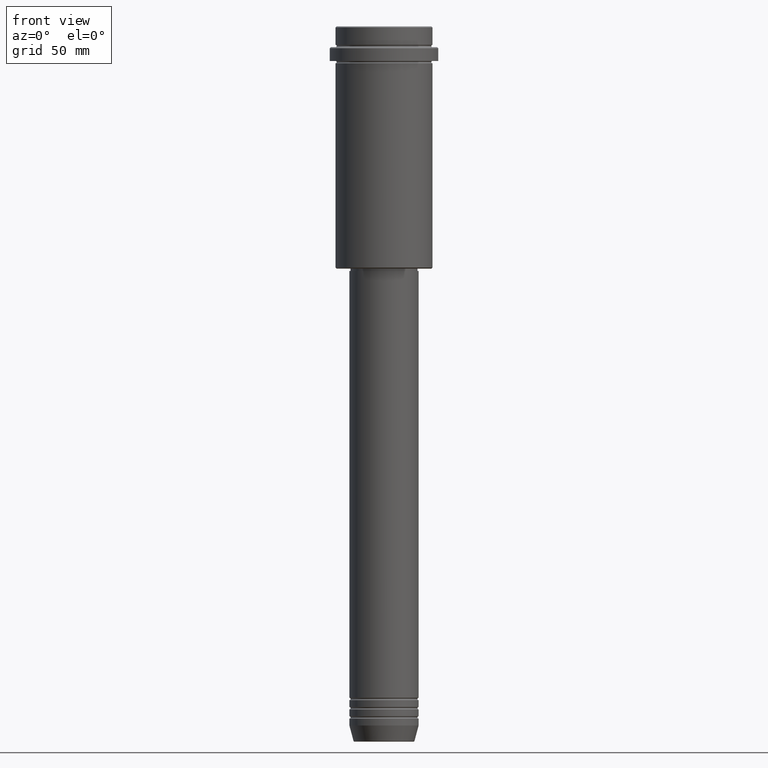
[diagram: clean part render]
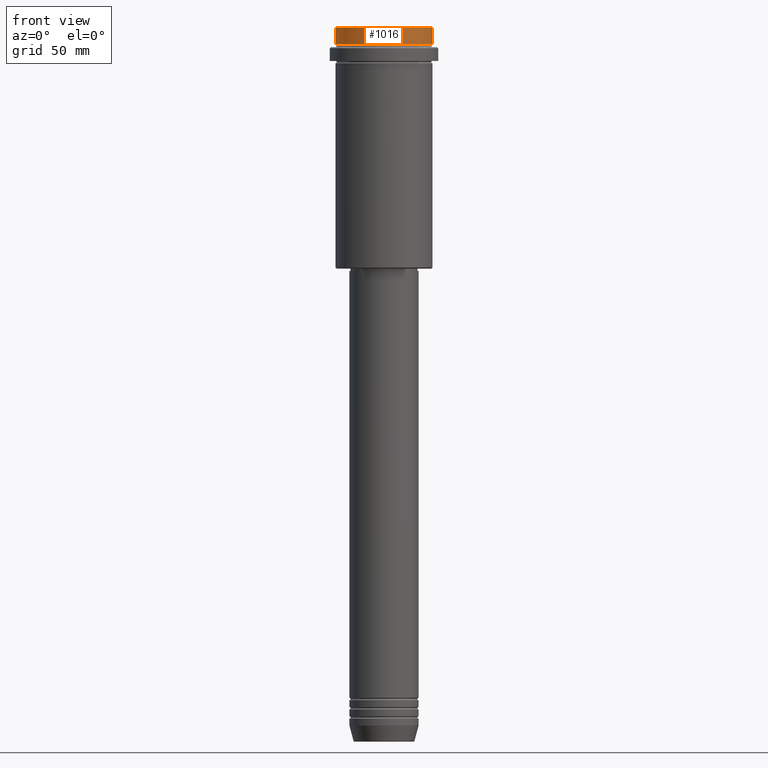
[diagram: same view with one face highlighted and labeled with its STEP entity id]
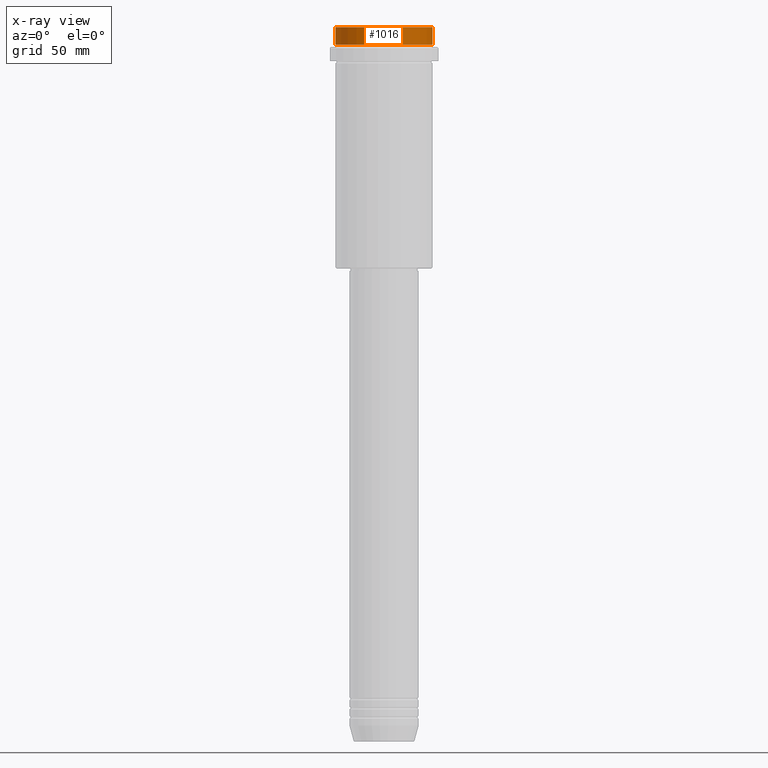
[diagram: x-ray of the same camera — body ghosted, the highlighted face saturated]
A machine part, front view. The second image highlights one B-rep face of the part: STEP entity #1016.
The next image is the same camera in x-ray: the body ghosted, the highlighted face saturated — about 0% of this face is hidden behind the body in this view.
In plain terms, the highlighted cylindrical surface (partial cylindrical patch) has radius 21 mm, axis along (-0, -0, 1).
Its self-contained STEP definition (entity closure, byte-faithful):
#45 = EDGE_CURVE ( 'NONE', #568, #397, #1180, .T. ) ;
#167 = CARTESIAN_POINT ( 'NONE',  ( -21.00000000000000000, 2.571758278209441661E-15, -0.4999999999999553690 ) ) ;
#172 = DIRECTION ( 'NONE',  ( -0.000000000000000000, -0.000000000000000000, 1.000000000000000000 ) ) ;
#184 = CIRCLE ( 'NONE', #321, 21.00000000000000000 ) ;
#233 = DIRECTION ( 'NONE',  ( 0.000000000000000000, 0.000000000000000000, -1.000000000000000000 ) ) ;
#237 = DIRECTION ( 'NONE',  ( 1.000000000000000000, 0.000000000000000000, 0.000000000000000000 ) ) ;
#321 = AXIS2_PLACEMENT_3D ( 'NONE', #1310, #233, #237 ) ;
#327 = LINE ( 'NONE', #674, #873 ) ;
#397 = VERTEX_POINT ( 'NONE', #167 ) ;
#420 = CARTESIAN_POINT ( 'NONE',  ( -21.00000000000000000, 2.571758278209441661E-15, 0.000000000000000000 ) ) ;
#494 = CARTESIAN_POINT ( 'NONE',  ( 21.00000000000000000, 0.000000000000000000, -0.4999999999999553690 ) ) ;
#510 = FACE_OUTER_BOUND ( 'NONE', #999, .T. ) ;
#538 = DIRECTION ( 'NONE',  ( 1.000000000000000000, 0.000000000000000000, 0.000000000000000000 ) ) ;
#568 = VERTEX_POINT ( 'NONE', #693 ) ;
#620 = ORIENTED_EDGE ( 'NONE', *, *, #754, .T. ) ;
#630 = ORIENTED_EDGE ( 'NONE', *, *, #1238, .T. ) ;
#643 = ORIENTED_EDGE ( 'NONE', *, *, #45, .F. ) ;
#669 = CIRCLE ( 'NONE', #1230, 21.00000000000000000 ) ;
#674 = CARTESIAN_POINT ( 'NONE',  ( 21.00000000000000000, 0.000000000000000000, 0.000000000000000000 ) ) ;
#693 = CARTESIAN_POINT ( 'NONE',  ( -21.00000000000000000, 2.571758278209441661E-15, -7.999999999999998224 ) ) ;
#729 = CARTESIAN_POINT ( 'NONE',  ( 21.00000000000000000, 0.000000000000000000, -7.999999999999998224 ) ) ;
#752 = CYLINDRICAL_SURFACE ( 'NONE', #1301, 21.00000000000000000 ) ;
#754 = EDGE_CURVE ( 'NONE', #568, #995, #669, .T. ) ;
#770 = DIRECTION ( 'NONE',  ( -0.000000000000000000, -0.000000000000000000, 1.000000000000000000 ) ) ;
#779 = VECTOR ( 'NONE', #770, 1000.000000000000000 ) ;
#855 = DIRECTION ( 'NONE',  ( -0.000000000000000000, -0.000000000000000000, 1.000000000000000000 ) ) ;
#873 = VECTOR ( 'NONE', #1102, 1000.000000000000000 ) ;
#989 = ORIENTED_EDGE ( 'NONE', *, *, #1137, .T. ) ;
#995 = VERTEX_POINT ( 'NONE', #729 ) ;
#999 = EDGE_LOOP ( 'NONE', ( #643, #620, #989, #630 ) ) ;
#1016 = ADVANCED_FACE ( 'NONE', ( #510 ), #752, .T. ) ;
#1057 = CARTESIAN_POINT ( 'NONE',  ( 0.000000000000000000, 0.000000000000000000, 0.000000000000000000 ) ) ;
#1102 = DIRECTION ( 'NONE',  ( -0.000000000000000000, -0.000000000000000000, 1.000000000000000000 ) ) ;
#1137 = EDGE_CURVE ( 'NONE', #995, #1330, #327, .T. ) ;
#1176 = DIRECTION ( 'NONE',  ( 1.000000000000000000, 0.000000000000000000, 0.000000000000000000 ) ) ;
#1180 = LINE ( 'NONE', #420, #779 ) ;
#1230 = AXIS2_PLACEMENT_3D ( 'NONE', #1376, #172, #1176 ) ;
#1238 = EDGE_CURVE ( 'NONE', #1330, #397, #184, .T. ) ;
#1301 = AXIS2_PLACEMENT_3D ( 'NONE', #1057, #855, #538 ) ;
#1310 = CARTESIAN_POINT ( 'NONE',  ( 0.000000000000000000, 0.000000000000000000, -0.4999999999999553690 ) ) ;
#1330 = VERTEX_POINT ( 'NONE', #494 ) ;
#1376 = CARTESIAN_POINT ( 'NONE',  ( 0.000000000000000000, 0.000000000000000000, -7.999999999999998224 ) ) ;